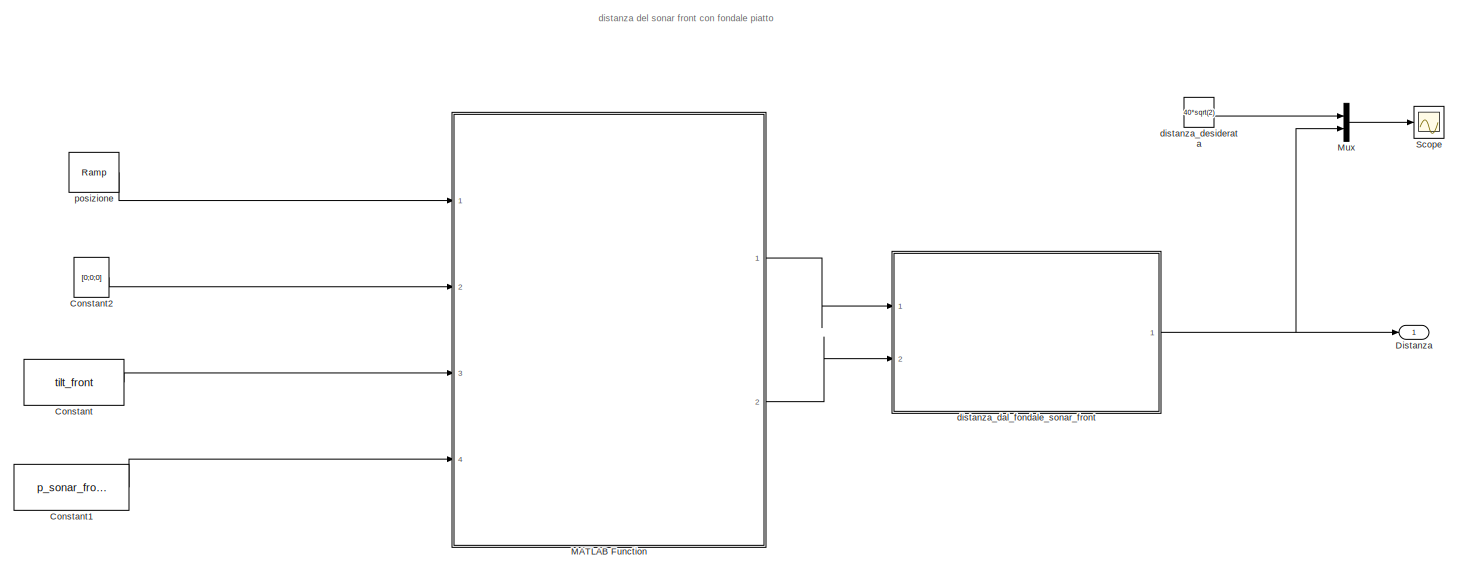
[diagram: root canvas - part 1/2, full width, top band]
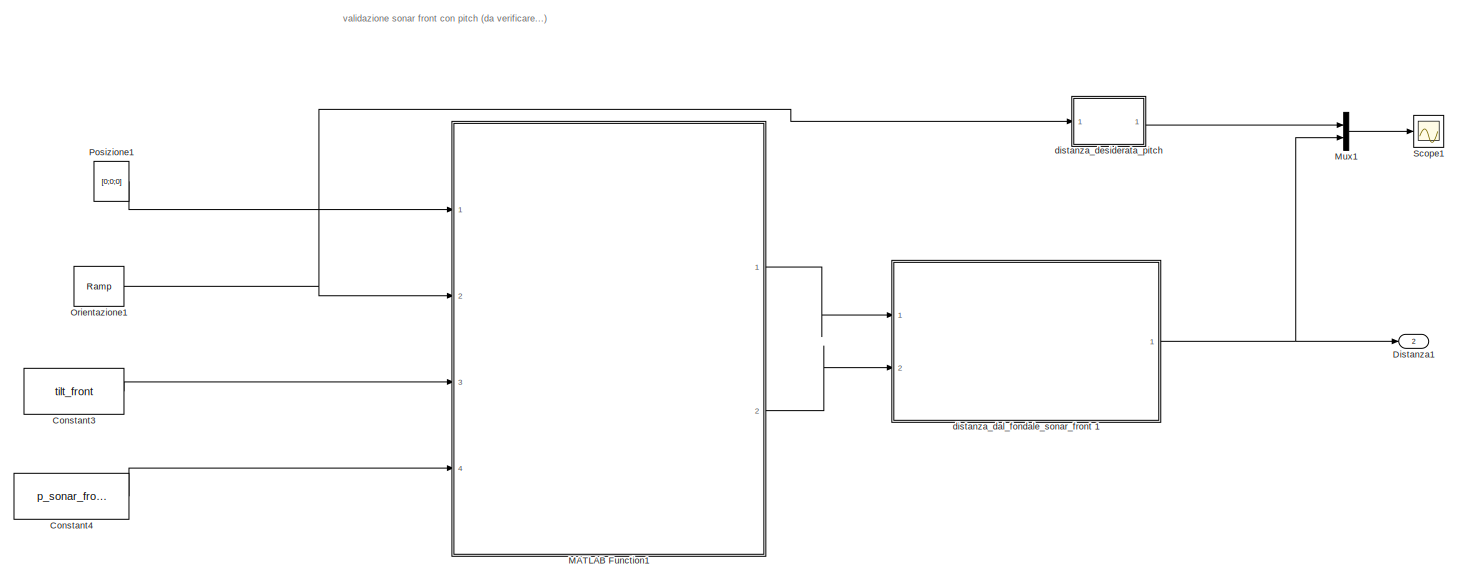
[diagram: root canvas - part 2/2, full width, bottom band]
MODEL slx_38831f297d6d
KIND model
CONFIG AbsTol = auto
CONFIG EnableMultiTasking = off
CONFIG FixedStep = auto
CONFIG MaxStep = auto
CONFIG MinStep = auto
CONFIG RelTol = 1e-3
CONFIG SampleTimeConstraint = Unconstrained
CONFIG Solver = VariableStepAuto
CONFIG SolverName = VariableStepAuto
CONFIG StartTime = 0.0
CONFIG StopTime = 5.0
BLOCK [Constant] Constant
  SampleTime = Ts_sonar_front
  Value = tilt_front
  VectorParams1D = off
BLOCK [Constant] Constant1
  SampleTime = Ts_sonar_front
  Value = p_sonar_front
  VectorParams1D = off
BLOCK [Constant] Constant2
  Value = [0;0;0]
  VectorParams1D = off
BLOCK [Constant] Constant3
  SampleTime = Ts_sonar_front
  Value = tilt_front
  VectorParams1D = off
BLOCK [Constant] Constant4
  SampleTime = Ts_sonar_front
  Value = p_sonar_front
  VectorParams1D = off
BLOCK [Outport] Distanza
  IconDisplay = Port number
BLOCK [Outport] Distanza1
  IconDisplay = Port number
  Port = 2
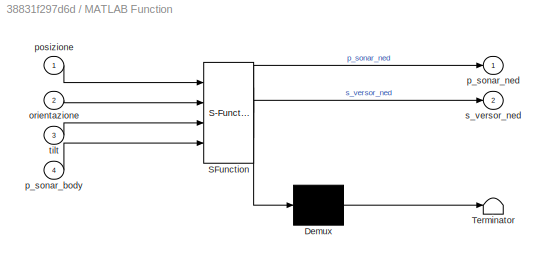
BLOCK [SubSystem] MATLAB Function
  ErrorFcn = Stateflow.Translate.translate
  PermitHierarchicalResolution = ExplicitOnly
  Ports = [4, 2]
  RequestExecContextInheritance = off
  SFBlockType = MATLAB Function
  TreatAsAtomicUnit = on
BLOCK [Demux] MATLAB Function/ Demux 
  Outputs = 1
  Ports = [1, 1]
BLOCK [S-Function] MATLAB Function/ SFunction 
  EnableBusSupport = on
  FunctionName = sf_sfun
  PortCounts = [4 3]
  Ports = [4, 3]
  SFcnIsStateOwnerBlock = off
  SFunctionDeploymentMode = off
  Tag = Stateflow S-Function validazione_sonar_front 7
BLOCK [Terminator] MATLAB Function/ Terminator 
BLOCK [Inport] MATLAB Function/orientazione
  IconDisplay = Port number
  Port = 2
BLOCK [Inport] MATLAB Function/p_sonar_body
  IconDisplay = Port number
  Port = 4
BLOCK [Outport] MATLAB Function/p_sonar_ned
  IconDisplay = Port number
BLOCK [Inport] MATLAB Function/posizione
  IconDisplay = Port number
BLOCK [Outport] MATLAB Function/s_versor_ned
  IconDisplay = Port number
  Port = 2
BLOCK [Inport] MATLAB Function/tilt
  IconDisplay = Port number
  Port = 3
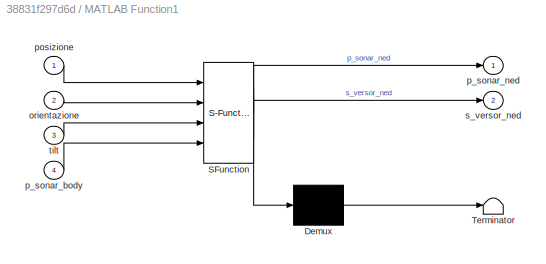
BLOCK [SubSystem] MATLAB Function1
  ErrorFcn = Stateflow.Translate.translate
  PermitHierarchicalResolution = ExplicitOnly
  Ports = [4, 2]
  RequestExecContextInheritance = off
  SFBlockType = MATLAB Function
  TreatAsAtomicUnit = on
BLOCK [Demux] MATLAB Function1/ Demux 
  Outputs = 1
  Ports = [1, 1]
BLOCK [S-Function] MATLAB Function1/ SFunction 
  EnableBusSupport = on
  FunctionName = sf_sfun
  PortCounts = [4 3]
  Ports = [4, 3]
  SFcnIsStateOwnerBlock = off
  SFunctionDeploymentMode = off
  Tag = Stateflow S-Function validazione_sonar_front 1
BLOCK [Terminator] MATLAB Function1/ Terminator 
BLOCK [Inport] MATLAB Function1/orientazione
  IconDisplay = Port number
  Port = 2
BLOCK [Inport] MATLAB Function1/p_sonar_body
  IconDisplay = Port number
  Port = 4
BLOCK [Outport] MATLAB Function1/p_sonar_ned
  IconDisplay = Port number
BLOCK [Inport] MATLAB Function1/posizione
  IconDisplay = Port number
BLOCK [Outport] MATLAB Function1/s_versor_ned
  IconDisplay = Port number
  Port = 2
BLOCK [Inport] MATLAB Function1/tilt
  IconDisplay = Port number
  Port = 3
BLOCK [Mux] Mux
  DisplayOption = bar
  Inputs = 2
  Ports = [2, 1]
BLOCK [Mux] Mux1
  DisplayOption = bar
  Inputs = 2
  Ports = [2, 1]
BLOCK [Reference] Orientazione1  REF=simulink/Sources/Ramp
  Ports = [0, 1]
  SourceBlock = simulink/Sources/Ramp
  SourceProductBaseCode = SL
  SourceProductName = Simulink
  SourceType = Ramp
BLOCK [Constant] Posizione1
  Value = [0;0;0]
  VectorParams1D = off
BLOCK [Scope] Scope
  Floating = off
  NumInputPorts = 1
  Ports = [1]
  ScopeSpecificationString = Simulink.scopes.TimeScopeBlockCfg('CurrentConfiguration', extmgr.ConfigurationSet(extmgr.Configuration('Core','General UI',true),extmgr.Configuration('Core','Source UI',true),extmgr.Configuration('Sources','WiredSimulink',true),extmgr.Configuration('Visuals','Time Domain',true,'SerializedDisplays',{struct('MinYLimReal','46.56854','MaxYLimReal','66.56854','YLabelReal','','MinYLimMag','46.56854','Ma...<+1451ch>
BLOCK [Scope] Scope1
  Floating = off
  NumInputPorts = 1
  Ports = [1]
  ScopeSpecificationString = Simulink.scopes.TimeScopeBlockCfg('CurrentConfiguration', extmgr.ConfigurationSet(extmgr.Configuration('Core','General UI',true),extmgr.Configuration('Core','Source UI',true),extmgr.Configuration('Sources','WiredSimulink',true,'DataLoggingVariableName','ScopeData1'),extmgr.Configuration('Visuals','Time Domain',true,'SerializedDisplays',{struct('MinYLimReal','54.88075','MaxYLimReal','71.75869','YLa...<+1592ch>
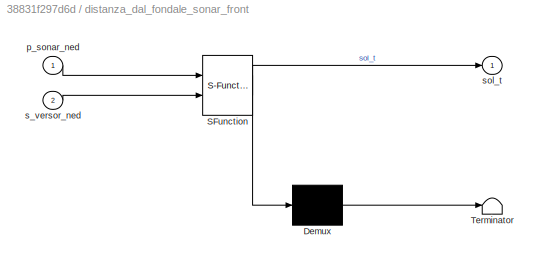
BLOCK [SubSystem] distanza_dal_fondale_sonar_front 
  ErrorFcn = Stateflow.Translate.translate
  PermitHierarchicalResolution = ExplicitOnly
  Ports = [2, 1]
  RequestExecContextInheritance = off
  SFBlockType = MATLAB Function
  TreatAsAtomicUnit = on
BLOCK [Demux] distanza_dal_fondale_sonar_front / Demux 
  Outputs = 1
  Ports = [1, 1]
BLOCK [S-Function] distanza_dal_fondale_sonar_front / SFunction 
  EnableBusSupport = on
  FunctionName = sf_sfun
  PortCounts = [2 2]
  Ports = [2, 2]
  SFcnIsStateOwnerBlock = off
  SFunctionDeploymentMode = off
  Tag = Stateflow S-Function validazione_sonar_front 8
BLOCK [Terminator] distanza_dal_fondale_sonar_front / Terminator 
BLOCK [Inport] distanza_dal_fondale_sonar_front /p_sonar_ned
  IconDisplay = Port number
BLOCK [Inport] distanza_dal_fondale_sonar_front /s_versor_ned
  IconDisplay = Port number
  Port = 2
BLOCK [Outport] distanza_dal_fondale_sonar_front /sol_t
  IconDisplay = Port number
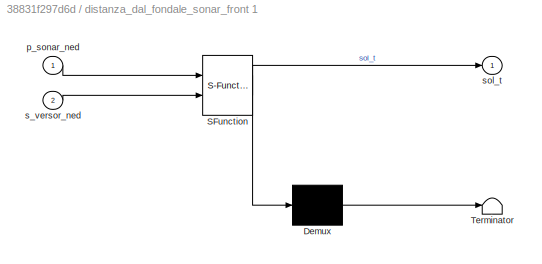
BLOCK [SubSystem] distanza_dal_fondale_sonar_front 1
  ErrorFcn = Stateflow.Translate.translate
  PermitHierarchicalResolution = ExplicitOnly
  Ports = [2, 1]
  RequestExecContextInheritance = off
  SFBlockType = MATLAB Function
  TreatAsAtomicUnit = on
BLOCK [Demux] distanza_dal_fondale_sonar_front 1/ Demux 
  Outputs = 1
  Ports = [1, 1]
BLOCK [S-Function] distanza_dal_fondale_sonar_front 1/ SFunction 
  EnableBusSupport = on
  FunctionName = sf_sfun
  PortCounts = [2 2]
  Ports = [2, 2]
  SFcnIsStateOwnerBlock = off
  SFunctionDeploymentMode = off
  Tag = Stateflow S-Function validazione_sonar_front 2
BLOCK [Terminator] distanza_dal_fondale_sonar_front 1/ Terminator 
BLOCK [Inport] distanza_dal_fondale_sonar_front 1/p_sonar_ned
  IconDisplay = Port number
BLOCK [Inport] distanza_dal_fondale_sonar_front 1/s_versor_ned
  IconDisplay = Port number
  Port = 2
BLOCK [Outport] distanza_dal_fondale_sonar_front 1/sol_t
  IconDisplay = Port number
BLOCK [Constant] distanza_desiderata
  Value = 40*sqrt(2)
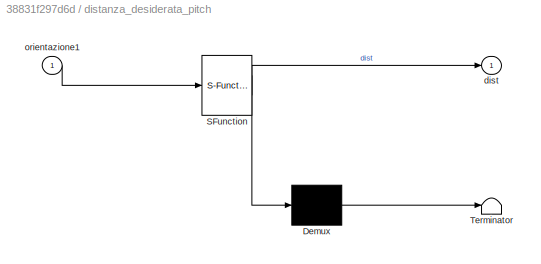
BLOCK [SubSystem] distanza_desiderata_pitch
  ErrorFcn = Stateflow.Translate.translate
  PermitHierarchicalResolution = ExplicitOnly
  Ports = [1, 1]
  RequestExecContextInheritance = off
  SFBlockType = MATLAB Function
  TreatAsAtomicUnit = on
BLOCK [Demux] distanza_desiderata_pitch/ Demux 
  Outputs = 1
  Ports = [1, 1]
BLOCK [S-Function] distanza_desiderata_pitch/ SFunction 
  EnableBusSupport = on
  FunctionName = sf_sfun
  PortCounts = [1 2]
  Ports = [1, 2]
  SFcnIsStateOwnerBlock = off
  SFunctionDeploymentMode = off
  Tag = Stateflow S-Function validazione_sonar_front 3
BLOCK [Terminator] distanza_desiderata_pitch/ Terminator 
BLOCK [Outport] distanza_desiderata_pitch/dist
  IconDisplay = Port number
BLOCK [Inport] distanza_desiderata_pitch/orientazione1
  IconDisplay = Port number
BLOCK [Reference] posizione  REF=simulink/Sources/Ramp
  Ports = [0, 1]
  SourceBlock = simulink/Sources/Ramp
  SourceProductBaseCode = SL
  SourceProductName = Simulink
  SourceType = Ramp
ANNOTATION (root): distanza del sonar front con fondale piatto
ANNOTATION (root): validazione sonar front con pitch (da verificare...)
LINE Constant1:1 -> MATLAB Function:4
LINE Constant2:1 -> MATLAB Function:2
LINE Constant3:1 -> MATLAB Function1:3
LINE Constant4:1 -> MATLAB Function1:4
LINE Constant:1 -> MATLAB Function:3
LINE MATLAB Function1:1 -> distanza_dal_fondale_sonar_front 1:1
LINE MATLAB Function1:2 -> distanza_dal_fondale_sonar_front 1:2
LINE MATLAB Function:1 -> distanza_dal_fondale_sonar_front :1
LINE MATLAB Function:2 -> distanza_dal_fondale_sonar_front :2
LINE Mux1:1 -> Scope1:1
LINE Mux:1 -> Scope:1
NET Orientazione1:1 -> MATLAB Function1:2, distanza_desiderata_pitch:1
LINE Posizione1:1 -> MATLAB Function1:1
NET distanza_dal_fondale_sonar_front 1:1 -> Distanza1:1, Mux1:2
NET distanza_dal_fondale_sonar_front :1 -> Distanza:1, Mux:2
LINE distanza_desiderata:1 -> Mux:1
LINE distanza_desiderata_pitch:1 -> Mux1:1
LINE posizione:1 -> MATLAB Function:1
note: NET lines group one-source signal fan-out (src -> all destinations, sorted); 1:1 wires keep LINE
CHART MATLAB Function1 states=1 transitions=1
  STATE_LABEL 'eML_blk_kernel()'
  STATE_LABEL 'SCRIPT:\nfunction [p_sonar_ned, s_versor_ned] = rot_body_ned(posizione,orientazione,tilt,p_sonar_body)\n   \n roll = orientazione(1)\n pitch = orientazione(2)\n yaw = orientazione(3)\n xNorth = posizione(1)\n yEast = posizione(2)\n zDown = posizione(3)\n Rx = [1 0 0; 0 cos(roll) -sin(roll); 0 sin(roll) cos(roll)];\n Ry = [cos(pitch) 0 sin(pitch); 0 1 0; -sin(pitch) 0 cos(pitch)];\n Rz = [cos(yaw) -sin(yaw) 0...<+361ch>'
CHART distanza_dal_fondale_sonar_front
1 states=1 transitions=1
  STATE_LABEL 'eML_blk_kernel()'
  STATE_LABEL "SCRIPT:\nfunction sol_t = sonar_down(p_sonar_ned, s_versor_ned)\n\ncoder.extrinsic('fondale_piatto');\nsol_t = 0;\nsol_t = fondale_piatto(p_sonar_ned, s_versor_ned)\n\nend"
CHART distanza_desiderata_pitch states=1 transitions=1
  STATE_LABEL 'eML_blk_kernel()'
  STATE_LABEL 'SCRIPT:\nfunction dist = beccheggio(orientazione1)\n\nh = 40 ; % distanza del sonar dal fondale\n\ndist = 0;\ndist = h/cos(orientazione1(2)+pi/4);\n\nend'
CHART MATLAB Function states=1 transitions=1
  STATE_LABEL 'eML_blk_kernel()'
  STATE_LABEL 'SCRIPT:\nfunction [p_sonar_ned, s_versor_ned] = rot_body_ned(posizione,orientazione,tilt,p_sonar_body)\n   \n roll = orientazione(1)\n pitch = orientazione(2)\n yaw = orientazione(3)\n xNorth = posizione(1)\n yEast = posizione(2)\n zDown = posizione(3)\n Rx = [1 0 0; 0 cos(roll) -sin(roll); 0 sin(roll) cos(roll)];\n Ry = [cos(pitch) 0 sin(pitch); 0 1 0; -sin(pitch) 0 cos(pitch)];\n Rz = [cos(yaw) -sin(yaw) 0...<+361ch>'
CHART distanza_dal_fondale_sonar_front
 states=1 transitions=1
  STATE_LABEL 'eML_blk_kernel()'
  STATE_LABEL "SCRIPT:\nfunction sol_t = sonar_down(p_sonar_ned, s_versor_ned)\n\ncoder.extrinsic('fondale_piatto');\nsol_t = 0;\nsol_t = fondale_piatto(p_sonar_ned, s_versor_ned)\n\nend"
